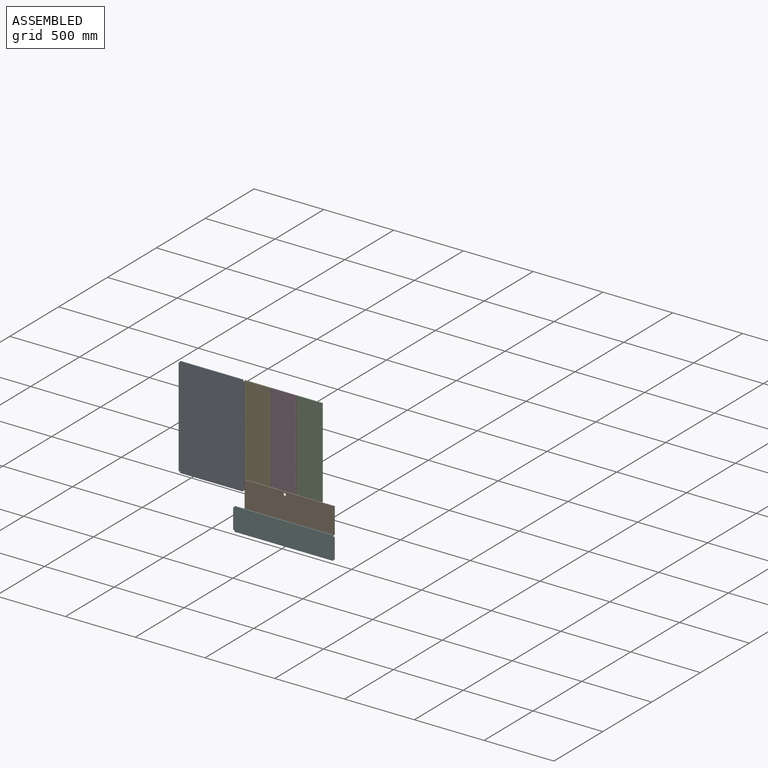
[diagram: assembled view]
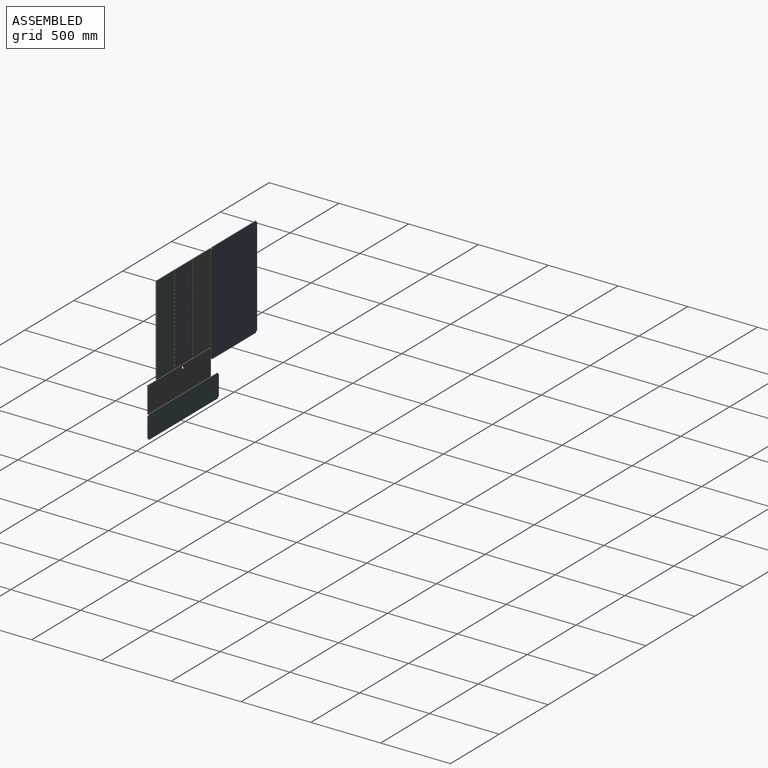
[diagram: assembled view, second angle]
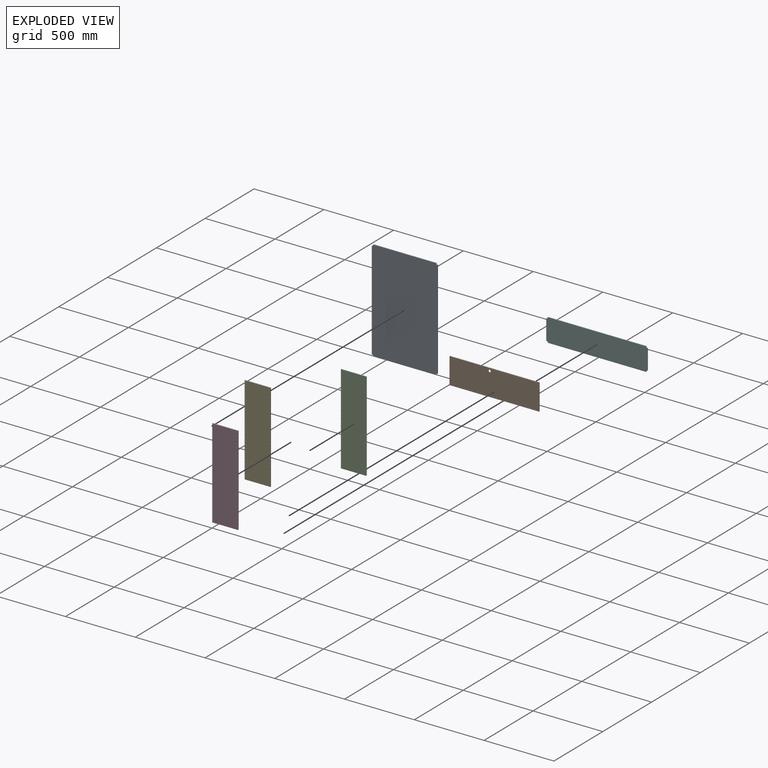
[diagram: exploded view]
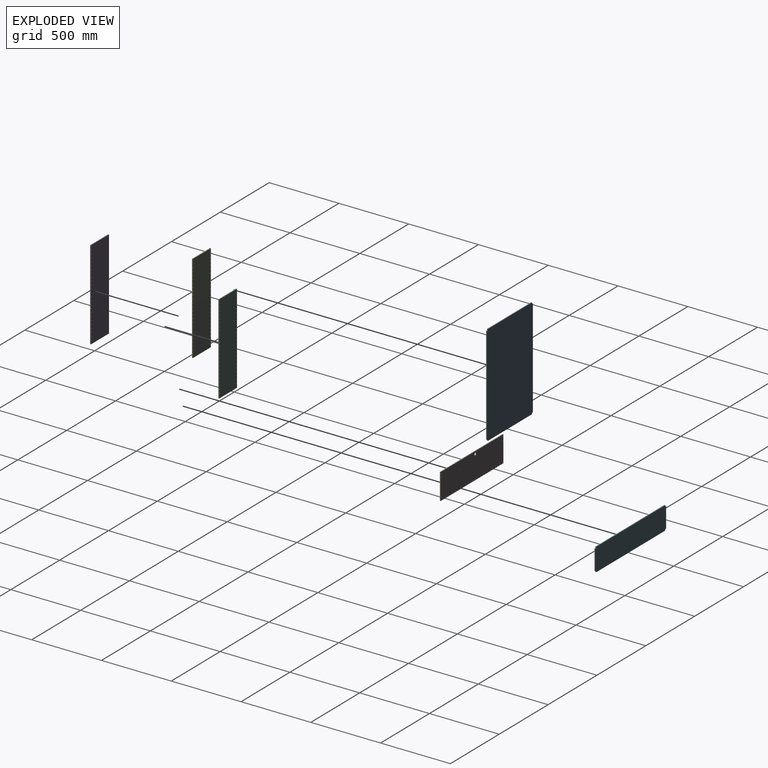
[diagram: exploded view, second angle]
ASSEMBLY  parts=6 mates=5
PART A: 14 faces, bbox 723.9x469.9x6.4 mm
  f0: plane 450.85x6.35mm, normal (-1,0,0), area 2862.9mm2, adj f1,f11,f12,f13
  f1: plane 9.53x6.35mm, normal (0,-1,0), area 60.5mm2, adj f0,f2,f12,f13
  f2: plane 9.53x6.35mm, normal (-1,0,0), area 60.5mm2, adj f1,f3,f12,f13
  f3: plane 704.85x6.35mm, normal (0,-1,0), area 4475.8mm2, adj f2,f4,f12,f13
  f4: plane 9.53x6.35mm, normal (1,0,0), area 60.5mm2, adj f3,f5,f12,f13
  f5: plane 9.53x6.35mm, normal (0,-1,0), area 60.5mm2, adj f4,f6,f12,f13
  f6: plane 450.85x6.35mm, normal (1,0,0), area 2862.9mm2, adj f5,f7,f12,f13
  f7: plane 9.53x6.35mm, normal (0,1,0), area 60.5mm2, adj f6,f8,f12,f13
  f8: plane 9.53x6.35mm, normal (1,0,0), area 60.5mm2, adj f7,f9,f12,f13
  f9: plane 704.85x6.35mm, normal (0,1,0), area 4475.8mm2, adj f8,f10,f12,f13
  f10: plane 9.53x6.35mm, normal (-1,0,0), area 60.5mm2, adj f9,f11,f12,f13
  f11: plane 9.53x6.35mm, normal (0,1,0), area 60.5mm2, adj f0,f10,f12,f13
  f12: plane 723.9x469.9mm, normal (0,0,1), area 339797.7mm2, adj f0,f1,f2,f3,f4,f5,f6,f7
  f13: plane 723.9x469.9mm, normal (0,0,-1), area 339797.7mm2, adj f0,f1,f2,f3,f4,f5,f6,f7
PART B: 38 faces, bbox 187.3x6.4x641.4 mm
  f0: plane 641.35x6.35mm, normal (-1,0,0), area 4072.6mm2, adj f1,f30,f32,f33
  f1: plane 187.33x6.35mm, normal (0,0,-1), area 1189.5mm2, adj f0,f2,f32,f33
  f2: plane 641.35x6.35mm, normal (1,0,0), area 4072.6mm2, adj f1,f30,f32,f33
  f3: cylinder r=2.15mm len=6.35mm, axis (0,1,0), area 85.9mm2, adj f32,f33
  f4: cylinder r=2.15mm len=6.35mm, axis (0,1,0), area 85.9mm2, adj f32,f33
  f5: cylinder r=2.55mm len=6.35mm, axis (0,1,0), area 101.8mm2, adj f32,f33
  f6: cylinder r=2.55mm len=6.35mm, axis (0,1,0), area 101.8mm2, adj f32,f33
  f7: cylinder r=2.55mm len=6.35mm, axis (0,1,0), area 101.8mm2, adj f32,f33
  f8: cylinder r=2.55mm len=6.35mm, axis (0,1,0), area 101.8mm2, adj f32,f33
  f9: cylinder r=2.55mm len=6.35mm, axis (0,1,0), area 101.8mm2, adj f32,f33
  f10: cylinder r=2.55mm len=6.35mm, axis (0,1,0), area 101.8mm2, adj f32,f33
  f11: cylinder r=2.55mm len=6.35mm, axis (0,1,0), area 101.8mm2, adj f32,f33
  f12: cylinder r=2.55mm len=6.35mm, axis (0,1,0), area 101.8mm2, adj f32,f33
  f13: cylinder r=2.55mm len=6.35mm, axis (0,1,0), area 101.8mm2, adj f32,f33
  f14: cylinder r=2.55mm len=6.35mm, axis (0,1,0), area 101.8mm2, adj f32,f33
  f15: cylinder r=2.55mm len=6.35mm, axis (0,1,0), area 101.8mm2, adj f32,f33
  f16: cylinder r=2.55mm len=6.35mm, axis (0,1,0), area 101.8mm2, adj f32,f33
  f17: cylinder r=2.55mm len=6.35mm, axis (0,1,0), area 101.8mm2, adj f32,f33
  f18: cylinder r=2.55mm len=6.35mm, axis (0,1,0), area 101.8mm2, adj f32,f33
  f19: cylinder r=2.55mm len=6.35mm, axis (0,1,0), area 101.8mm2, adj f32,f33
  f20: cylinder r=2.55mm len=6.35mm, axis (0,1,0), area 101.8mm2, adj f32,f33
  f21: cylinder r=2.55mm len=6.35mm, axis (0,1,0), area 101.8mm2, adj f32,f33
  f22: cylinder r=2.55mm len=6.35mm, axis (0,1,0), area 101.8mm2, adj f32,f33
  f23: cylinder r=2.55mm len=6.35mm, axis (0,1,0), area 101.8mm2, adj f32,f33
  f24: cylinder r=2.55mm len=6.35mm, axis (0,1,0), area 101.8mm2, adj f32,f33
  f25: cylinder r=2.55mm len=6.35mm, axis (0,1,0), area 101.8mm2, adj f32,f33
  f26: cylinder r=2.55mm len=6.35mm, axis (0,1,0), area 101.8mm2, adj f32,f33
  f27: cylinder r=2.55mm len=6.35mm, axis (0,1,0), area 101.8mm2, adj f32,f33
  f28: cylinder r=2.55mm len=6.35mm, axis (0,1,0), area 101.8mm2, adj f32,f33
  f29: cylinder r=2.55mm len=6.35mm, axis (0,1,0), area 101.8mm2, adj f32,f33
  f30: plane 187.33x6.35mm, normal (0,0,1), area 1189.5mm2, adj f0,f2,f32,f33
  f31: cylinder r=9.53mm len=19.05mm, axis (0,1,0), area 380mm2, adj f32,f33
  f32: plane 641.35x187.33mm, normal (0,-1,0), area 119233.1mm2, adj f0,f1,f2,f3,f4,f5,f6,f7
  f33: plane 641.35x187.33mm, normal (0,1,0), area 119233.1mm2, adj f0,f1,f2,f3,f4,f5,f6,f7
  f34: cylinder r=2.55mm len=6.35mm, axis (0,-1,0), area 101.8mm2, adj f32,f33
  f35: cylinder r=2.55mm len=6.35mm, axis (0,-1,0), area 101.8mm2, adj f32,f33
  f36: cylinder r=2.55mm len=6.35mm, axis (0,-1,0), area 101.8mm2, adj f32,f33
  f37: cylinder r=2.55mm len=6.35mm, axis (0,-1,0), area 101.8mm2, adj f32,f33
PART C: 56 faces, bbox 181x6.4x641.4 mm
  f0: plane 641.35x6.35mm, normal (-1,0,0), area 4072.6mm2, adj f1,f52,f54,f55
  f1: plane 180.98x6.35mm, normal (0,0,-1), area 1149.2mm2, adj f0,f2,f54,f55
  f2: plane 641.35x6.35mm, normal (1,0,0), area 4072.6mm2, adj f1,f52,f54,f55
  f3: cylinder r=2.55mm len=6.35mm, axis (0,1,0), area 101.8mm2, adj f54,f55
  f4: cylinder r=2.55mm len=6.35mm, axis (0,1,0), area 101.8mm2, adj f54,f55
  f5: cylinder r=2.55mm len=6.35mm, axis (0,1,0), area 101.8mm2, adj f54,f55
  f6: cylinder r=2.55mm len=6.35mm, axis (0,1,0), area 101.8mm2, adj f54,f55
  f7: cylinder r=2.55mm len=6.35mm, axis (0,1,0), area 101.8mm2, adj f54,f55
  f8: cylinder r=2.55mm len=6.35mm, axis (0,1,0), area 101.8mm2, adj f54,f55
  f9: cylinder r=2.55mm len=6.35mm, axis (0,1,0), area 101.8mm2, adj f54,f55
  f10: cylinder r=2.55mm len=6.35mm, axis (0,1,0), area 101.8mm2, adj f54,f55
  f11: cylinder r=2.55mm len=6.35mm, axis (0,1,0), area 101.8mm2, adj f54,f55
  f12: cylinder r=2.55mm len=6.35mm, axis (0,1,0), area 101.8mm2, adj f54,f55
  f13: cylinder r=2.55mm len=6.35mm, axis (0,1,0), area 101.8mm2, adj f54,f55
  f14: cylinder r=2.55mm len=6.35mm, axis (0,1,0), area 101.8mm2, adj f54,f55
  f15: cylinder r=2.55mm len=6.35mm, axis (0,1,0), area 101.8mm2, adj f54,f55
  f16: cylinder r=2.55mm len=6.35mm, axis (0,1,0), area 101.8mm2, adj f54,f55
  f17: cylinder r=2.55mm len=6.35mm, axis (0,1,0), area 101.8mm2, adj f54,f55
  f18: cylinder r=2.55mm len=6.35mm, axis (0,1,0), area 101.8mm2, adj f54,f55
  f19: cylinder r=2.55mm len=6.35mm, axis (0,1,0), area 101.8mm2, adj f54,f55
  f20: cylinder r=2.55mm len=6.35mm, axis (0,1,0), area 101.8mm2, adj f54,f55
  f21: cylinder r=2.55mm len=6.35mm, axis (0,1,0), area 101.8mm2, adj f54,f55
  f22: cylinder r=2.55mm len=6.35mm, axis (0,1,0), area 101.8mm2, adj f54,f55
  f23: cylinder r=2.55mm len=6.35mm, axis (0,1,0), area 101.8mm2, adj f54,f55
  f24: cylinder r=2.55mm len=6.35mm, axis (0,1,0), area 101.8mm2, adj f54,f55
  f25: cylinder r=2.55mm len=6.35mm, axis (0,1,0), area 101.8mm2, adj f54,f55
  f26: cylinder r=2.55mm len=6.35mm, axis (0,1,0), area 101.8mm2, adj f54,f55
  f27: cylinder r=2.55mm len=6.35mm, axis (0,1,0), area 101.8mm2, adj f54,f55
  f28: cylinder r=2.55mm len=6.35mm, axis (0,1,0), area 101.8mm2, adj f54,f55
  f29: cylinder r=2.55mm len=6.35mm, axis (0,1,0), area 101.8mm2, adj f54,f55
  f30: cylinder r=2.55mm len=6.35mm, axis (0,1,0), area 101.8mm2, adj f54,f55
  f31: cylinder r=2.55mm len=6.35mm, axis (0,1,0), area 101.8mm2, adj f54,f55
  f32: cylinder r=2.55mm len=6.35mm, axis (0,1,0), area 101.8mm2, adj f54,f55
  f33: cylinder r=2.55mm len=6.35mm, axis (0,1,0), area 101.8mm2, adj f54,f55
  f34: cylinder r=2.55mm len=6.35mm, axis (0,1,0), area 101.8mm2, adj f54,f55
  f35: cylinder r=2.55mm len=6.35mm, axis (0,1,0), area 101.8mm2, adj f54,f55
  f36: cylinder r=2.55mm len=6.35mm, axis (0,1,0), area 101.8mm2, adj f54,f55
  f37: cylinder r=2.55mm len=6.35mm, axis (0,1,0), area 101.8mm2, adj f54,f55
  f38: cylinder r=2.55mm len=6.35mm, axis (0,1,0), area 101.8mm2, adj f54,f55
  f39: cylinder r=2.55mm len=6.35mm, axis (0,1,0), area 101.8mm2, adj f54,f55
  f40: cylinder r=2.55mm len=6.35mm, axis (0,1,0), area 101.8mm2, adj f54,f55
  f41: cylinder r=2.55mm len=6.35mm, axis (0,1,0), area 101.8mm2, adj f54,f55
  f42: cylinder r=2.55mm len=6.35mm, axis (0,1,0), area 101.8mm2, adj f54,f55
  f43: cylinder r=2.55mm len=6.35mm, axis (0,1,0), area 101.8mm2, adj f54,f55
  f44: cylinder r=2.55mm len=6.35mm, axis (0,1,0), area 101.8mm2, adj f54,f55
  f45: cylinder r=2.55mm len=6.35mm, axis (0,1,0), area 101.8mm2, adj f54,f55
  f46: cylinder r=2.55mm len=6.35mm, axis (0,1,0), area 101.8mm2, adj f54,f55
  f47: cylinder r=2.55mm len=6.35mm, axis (0,1,0), area 101.8mm2, adj f54,f55
  f48: cylinder r=2.55mm len=6.35mm, axis (0,1,0), area 101.8mm2, adj f54,f55
  f49: cylinder r=2.55mm len=6.35mm, axis (0,1,0), area 101.8mm2, adj f54,f55
  f50: cylinder r=2.55mm len=6.35mm, axis (0,1,0), area 101.8mm2, adj f54,f55
  f51: cylinder r=2.55mm len=6.35mm, axis (0,1,0), area 101.8mm2, adj f54,f55
  f52: plane 180.98x6.35mm, normal (0,0,1), area 1149.2mm2, adj f0,f2,f54,f55
  f53: cylinder r=2.55mm len=6.35mm, axis (0,1,0), area 101.8mm2, adj f54,f55
  f54: plane 641.35x180.98mm, normal (0,-1,0), area 115044.7mm2, adj f0,f1,f2,f3,f4,f5,f6,f7
  f55: plane 641.35x180.98mm, normal (0,1,0), area 115044.7mm2, adj f0,f1,f2,f3,f4,f5,f6,f7
PART D: 39 faces, bbox 184.2x6.4x641.4 mm
  f0: plane 641.35x6.35mm, normal (-1,0,0), area 4072.6mm2, adj f1,f31,f33,f34
  f1: plane 184.15x6.35mm, normal (0,0,-1), area 1169.4mm2, adj f0,f2,f33,f34
  f2: plane 641.35x6.35mm, normal (1,0,0), area 4072.6mm2, adj f1,f31,f33,f34
  f3: cylinder r=1.83mm len=6.35mm, axis (0,1,0), area 73mm2, adj f33,f34
  f4: cylinder r=2.15mm len=6.35mm, axis (0,1,0), area 85.9mm2, adj f33,f34
  f5: cylinder r=2.15mm len=6.35mm, axis (0,1,0), area 85.9mm2, adj f33,f34
  f6: cylinder r=2.55mm len=6.35mm, axis (0,1,0), area 101.8mm2, adj f33,f34
  f7: cylinder r=2.55mm len=6.35mm, axis (0,1,0), area 101.8mm2, adj f33,f34
  f8: cylinder r=2.55mm len=6.35mm, axis (0,1,0), area 101.8mm2, adj f33,f34
  f9: cylinder r=2.55mm len=6.35mm, axis (0,1,0), area 101.8mm2, adj f33,f34
  f10: cylinder r=2.55mm len=6.35mm, axis (0,1,0), area 101.8mm2, adj f33,f34
  f11: cylinder r=2.55mm len=6.35mm, axis (0,1,0), area 101.8mm2, adj f33,f34
  f12: cylinder r=2.55mm len=6.35mm, axis (0,1,0), area 101.8mm2, adj f33,f34
  f13: cylinder r=2.55mm len=6.35mm, axis (0,1,0), area 101.8mm2, adj f33,f34
  f14: cylinder r=2.55mm len=6.35mm, axis (0,1,0), area 101.8mm2, adj f33,f34
  f15: cylinder r=2.55mm len=6.35mm, axis (0,1,0), area 101.8mm2, adj f33,f34
  f16: cylinder r=2.55mm len=6.35mm, axis (0,1,0), area 101.8mm2, adj f33,f34
  f17: cylinder r=2.55mm len=6.35mm, axis (0,1,0), area 101.8mm2, adj f33,f34
  f18: cylinder r=2.55mm len=6.35mm, axis (0,1,0), area 101.8mm2, adj f33,f34
  f19: cylinder r=2.55mm len=6.35mm, axis (0,1,0), area 101.8mm2, adj f33,f34
  f20: cylinder r=2.55mm len=6.35mm, axis (0,1,0), area 101.8mm2, adj f33,f34
  f21: cylinder r=2.55mm len=6.35mm, axis (0,1,0), area 101.8mm2, adj f33,f34
  f22: cylinder r=2.55mm len=6.35mm, axis (0,1,0), area 101.8mm2, adj f33,f34
  f23: cylinder r=2.55mm len=6.35mm, axis (0,1,0), area 101.8mm2, adj f33,f34
  f24: cylinder r=2.55mm len=6.35mm, axis (0,1,0), area 101.8mm2, adj f33,f34
  f25: cylinder r=2.55mm len=6.35mm, axis (0,1,0), area 101.8mm2, adj f33,f34
  f26: cylinder r=2.55mm len=6.35mm, axis (0,1,0), area 101.8mm2, adj f33,f34
  f27: cylinder r=2.55mm len=6.35mm, axis (0,1,0), area 101.8mm2, adj f33,f34
  f28: cylinder r=2.55mm len=6.35mm, axis (0,1,0), area 101.8mm2, adj f33,f34
  f29: cylinder r=2.55mm len=6.35mm, axis (0,1,0), area 101.8mm2, adj f33,f34
  f30: cylinder r=2.55mm len=6.35mm, axis (0,1,0), area 101.8mm2, adj f33,f34
  f31: plane 184.15x6.35mm, normal (0,0,1), area 1169.4mm2, adj f0,f2,f33,f34
  f32: cylinder r=1.83mm len=6.35mm, axis (0,1,0), area 73mm2, adj f33,f34
  f33: plane 641.35x184.15mm, normal (0,-1,0), area 117460.8mm2, adj f0,f1,f2,f3,f4,f5,f6,f7
  f34: plane 641.35x184.15mm, normal (0,1,0), area 117460.8mm2, adj f0,f1,f2,f3,f4,f5,f6,f7
  f35: cylinder r=2.55mm len=6.35mm, axis (0,-1,0), area 101.8mm2, adj f33,f34
  f36: cylinder r=2.55mm len=6.35mm, axis (0,-1,0), area 101.8mm2, adj f33,f34
  f37: cylinder r=2.55mm len=6.35mm, axis (0,-1,0), area 101.8mm2, adj f33,f34
  f38: cylinder r=2.55mm len=6.35mm, axis (0,-1,0), area 101.8mm2, adj f33,f34
PART E: 56 faces, bbox 184.2x6.4x641.4 mm
  f0: plane 641.35x6.35mm, normal (-1,0,0), area 4072.6mm2, adj f1,f52,f54,f55
  f1: plane 184.15x6.35mm, normal (0,0,-1), area 1169.4mm2, adj f0,f2,f54,f55
  f2: plane 641.35x6.35mm, normal (1,0,0), area 4072.6mm2, adj f1,f52,f54,f55
  f3: cylinder r=2.55mm len=6.35mm, axis (0,1,0), area 101.8mm2, adj f54,f55
  f4: cylinder r=2.55mm len=6.35mm, axis (0,1,0), area 101.8mm2, adj f54,f55
  f5: cylinder r=2.55mm len=6.35mm, axis (0,1,0), area 101.8mm2, adj f54,f55
  f6: cylinder r=2.55mm len=6.35mm, axis (0,1,0), area 101.8mm2, adj f54,f55
  f7: cylinder r=2.55mm len=6.35mm, axis (0,1,0), area 101.8mm2, adj f54,f55
  f8: cylinder r=2.55mm len=6.35mm, axis (0,1,0), area 101.8mm2, adj f54,f55
  f9: cylinder r=2.55mm len=6.35mm, axis (0,1,0), area 101.8mm2, adj f54,f55
  f10: cylinder r=2.55mm len=6.35mm, axis (0,1,0), area 101.8mm2, adj f54,f55
  f11: cylinder r=2.55mm len=6.35mm, axis (0,1,0), area 101.8mm2, adj f54,f55
  f12: cylinder r=2.55mm len=6.35mm, axis (0,1,0), area 101.8mm2, adj f54,f55
  f13: cylinder r=2.55mm len=6.35mm, axis (0,1,0), area 101.8mm2, adj f54,f55
  f14: cylinder r=2.55mm len=6.35mm, axis (0,1,0), area 101.8mm2, adj f54,f55
  f15: cylinder r=2.55mm len=6.35mm, axis (0,1,0), area 101.8mm2, adj f54,f55
  f16: cylinder r=2.55mm len=6.35mm, axis (0,1,0), area 101.8mm2, adj f54,f55
  f17: cylinder r=2.55mm len=6.35mm, axis (0,1,0), area 101.8mm2, adj f54,f55
  f18: cylinder r=2.55mm len=6.35mm, axis (0,1,0), area 101.8mm2, adj f54,f55
  f19: cylinder r=2.55mm len=6.35mm, axis (0,1,0), area 101.8mm2, adj f54,f55
  f20: cylinder r=2.55mm len=6.35mm, axis (0,1,0), area 101.8mm2, adj f54,f55
  f21: cylinder r=2.55mm len=6.35mm, axis (0,1,0), area 101.8mm2, adj f54,f55
  f22: cylinder r=2.55mm len=6.35mm, axis (0,1,0), area 101.8mm2, adj f54,f55
  f23: cylinder r=2.55mm len=6.35mm, axis (0,1,0), area 101.8mm2, adj f54,f55
  f24: cylinder r=2.55mm len=6.35mm, axis (0,1,0), area 101.8mm2, adj f54,f55
  f25: cylinder r=2.55mm len=6.35mm, axis (0,1,0), area 101.8mm2, adj f54,f55
  f26: cylinder r=2.55mm len=6.35mm, axis (0,1,0), area 101.8mm2, adj f54,f55
  f27: cylinder r=2.55mm len=6.35mm, axis (0,1,0), area 101.8mm2, adj f54,f55
  f28: cylinder r=2.55mm len=6.35mm, axis (0,1,0), area 101.8mm2, adj f54,f55
  f29: cylinder r=2.55mm len=6.35mm, axis (0,1,0), area 101.8mm2, adj f54,f55
  f30: cylinder r=2.55mm len=6.35mm, axis (0,1,0), area 101.8mm2, adj f54,f55
  f31: cylinder r=2.55mm len=6.35mm, axis (0,1,0), area 101.8mm2, adj f54,f55
  f32: cylinder r=2.55mm len=6.35mm, axis (0,1,0), area 101.8mm2, adj f54,f55
  f33: cylinder r=2.55mm len=6.35mm, axis (0,1,0), area 101.8mm2, adj f54,f55
  f34: cylinder r=2.55mm len=6.35mm, axis (0,1,0), area 101.8mm2, adj f54,f55
  f35: cylinder r=2.55mm len=6.35mm, axis (0,1,0), area 101.8mm2, adj f54,f55
  f36: cylinder r=2.55mm len=6.35mm, axis (0,1,0), area 101.8mm2, adj f54,f55
  f37: cylinder r=2.55mm len=6.35mm, axis (0,1,0), area 101.8mm2, adj f54,f55
  f38: cylinder r=2.55mm len=6.35mm, axis (0,1,0), area 101.8mm2, adj f54,f55
  f39: cylinder r=2.55mm len=6.35mm, axis (0,1,0), area 101.8mm2, adj f54,f55
  f40: cylinder r=2.55mm len=6.35mm, axis (0,1,0), area 101.8mm2, adj f54,f55
  f41: cylinder r=2.55mm len=6.35mm, axis (0,1,0), area 101.8mm2, adj f54,f55
  f42: cylinder r=2.55mm len=6.35mm, axis (0,1,0), area 101.8mm2, adj f54,f55
  f43: cylinder r=2.55mm len=6.35mm, axis (0,1,0), area 101.8mm2, adj f54,f55
  f44: cylinder r=2.55mm len=6.35mm, axis (0,1,0), area 101.8mm2, adj f54,f55
  f45: cylinder r=2.55mm len=6.35mm, axis (0,1,0), area 101.8mm2, adj f54,f55
  f46: cylinder r=2.55mm len=6.35mm, axis (0,1,0), area 101.8mm2, adj f54,f55
  f47: cylinder r=2.55mm len=6.35mm, axis (0,1,0), area 101.8mm2, adj f54,f55
  f48: cylinder r=2.55mm len=6.35mm, axis (0,1,0), area 101.8mm2, adj f54,f55
  f49: cylinder r=2.55mm len=6.35mm, axis (0,1,0), area 101.8mm2, adj f54,f55
  f50: cylinder r=2.55mm len=6.35mm, axis (0,1,0), area 101.8mm2, adj f54,f55
  f51: cylinder r=2.55mm len=6.35mm, axis (0,1,0), area 101.8mm2, adj f54,f55
  f52: plane 184.15x6.35mm, normal (0,0,1), area 1169.4mm2, adj f0,f2,f54,f55
  f53: cylinder r=2.55mm len=6.35mm, axis (0,1,0), area 101.8mm2, adj f54,f55
  f54: plane 641.35x184.15mm, normal (0,-1,0), area 117081mm2, adj f0,f1,f2,f3,f4,f5,f6,f7
  f55: plane 641.35x184.15mm, normal (0,1,0), area 117081mm2, adj f0,f1,f2,f3,f4,f5,f6,f7
PART F: 14 faces, bbox 723.9x6.4x165.1 mm
  f0: plane 9.53x6.35mm, normal (0,0,1), area 60.5mm2, adj f1,f11,f12,f13
  f1: plane 146.05x6.35mm, normal (-1,0,0), area 927.4mm2, adj f0,f2,f12,f13
  f2: plane 9.53x6.35mm, normal (0,0,-1), area 60.5mm2, adj f1,f3,f12,f13
  f3: plane 9.53x6.35mm, normal (-1,0,0), area 60.5mm2, adj f2,f4,f12,f13
  f4: plane 704.85x6.35mm, normal (0,0,-1), area 4475.8mm2, adj f3,f5,f12,f13
  f5: plane 9.53x6.35mm, normal (1,0,0), area 60.5mm2, adj f4,f6,f12,f13
  f6: plane 9.53x6.35mm, normal (0,0,-1), area 60.5mm2, adj f5,f7,f12,f13
  f7: plane 146.05x6.35mm, normal (1,0,0), area 927.4mm2, adj f6,f8,f12,f13
  f8: plane 9.53x6.35mm, normal (0,0,1), area 60.5mm2, adj f7,f9,f12,f13
  f9: plane 9.53x6.35mm, normal (1,0,0), area 60.5mm2, adj f8,f10,f12,f13
  f10: plane 704.85x6.35mm, normal (0,0,1), area 4475.8mm2, adj f9,f11,f12,f13
  f11: plane 9.53x6.35mm, normal (-1,0,0), area 60.5mm2, adj f0,f10,f12,f13
  f12: plane 723.9x165.1mm, normal (0,-1,0), area 119153mm2, adj f0,f1,f2,f3,f4,f5,f6,f7
  f13: plane 723.9x165.1mm, normal (0,1,0), area 119153mm2, adj f0,f1,f2,f3,f4,f5,f6,f7
PLACE A rot(axis=(-0.58,-0.58,-0.58),120deg) t=(0,-6.35,361.95)mm
PLACE B rot(axis=(0,1,0),90deg) t=(238.12,0,79.37)mm
PLACE C t=(612.78,0,82.55)mm
PLACE D t=(425.45,0,82.55)mm
PLACE E t=(238.12,0,82.55)mm
PLACE F t=(517.52,0,-193.68)mm
MATE fastened E.f55 <-> D.f34  axis (0,1,0) through (422.28,0,403.22)mm
MATE fastened E.f55 <-> A.f12  axis (0,1,0) through (238.12,0,723.9)mm
MATE fastened F.f12 <-> B.f32  axis (0,-1,0) through (879.48,-6.35,-120.65)mm
MATE fastened D.f34 <-> C.f55  axis (0,1,0) through (609.6,0,82.55)mm
MATE fastened E.f55 <-> B.f33  axis (0,1,0) through (238.12,0,82.55)mm
